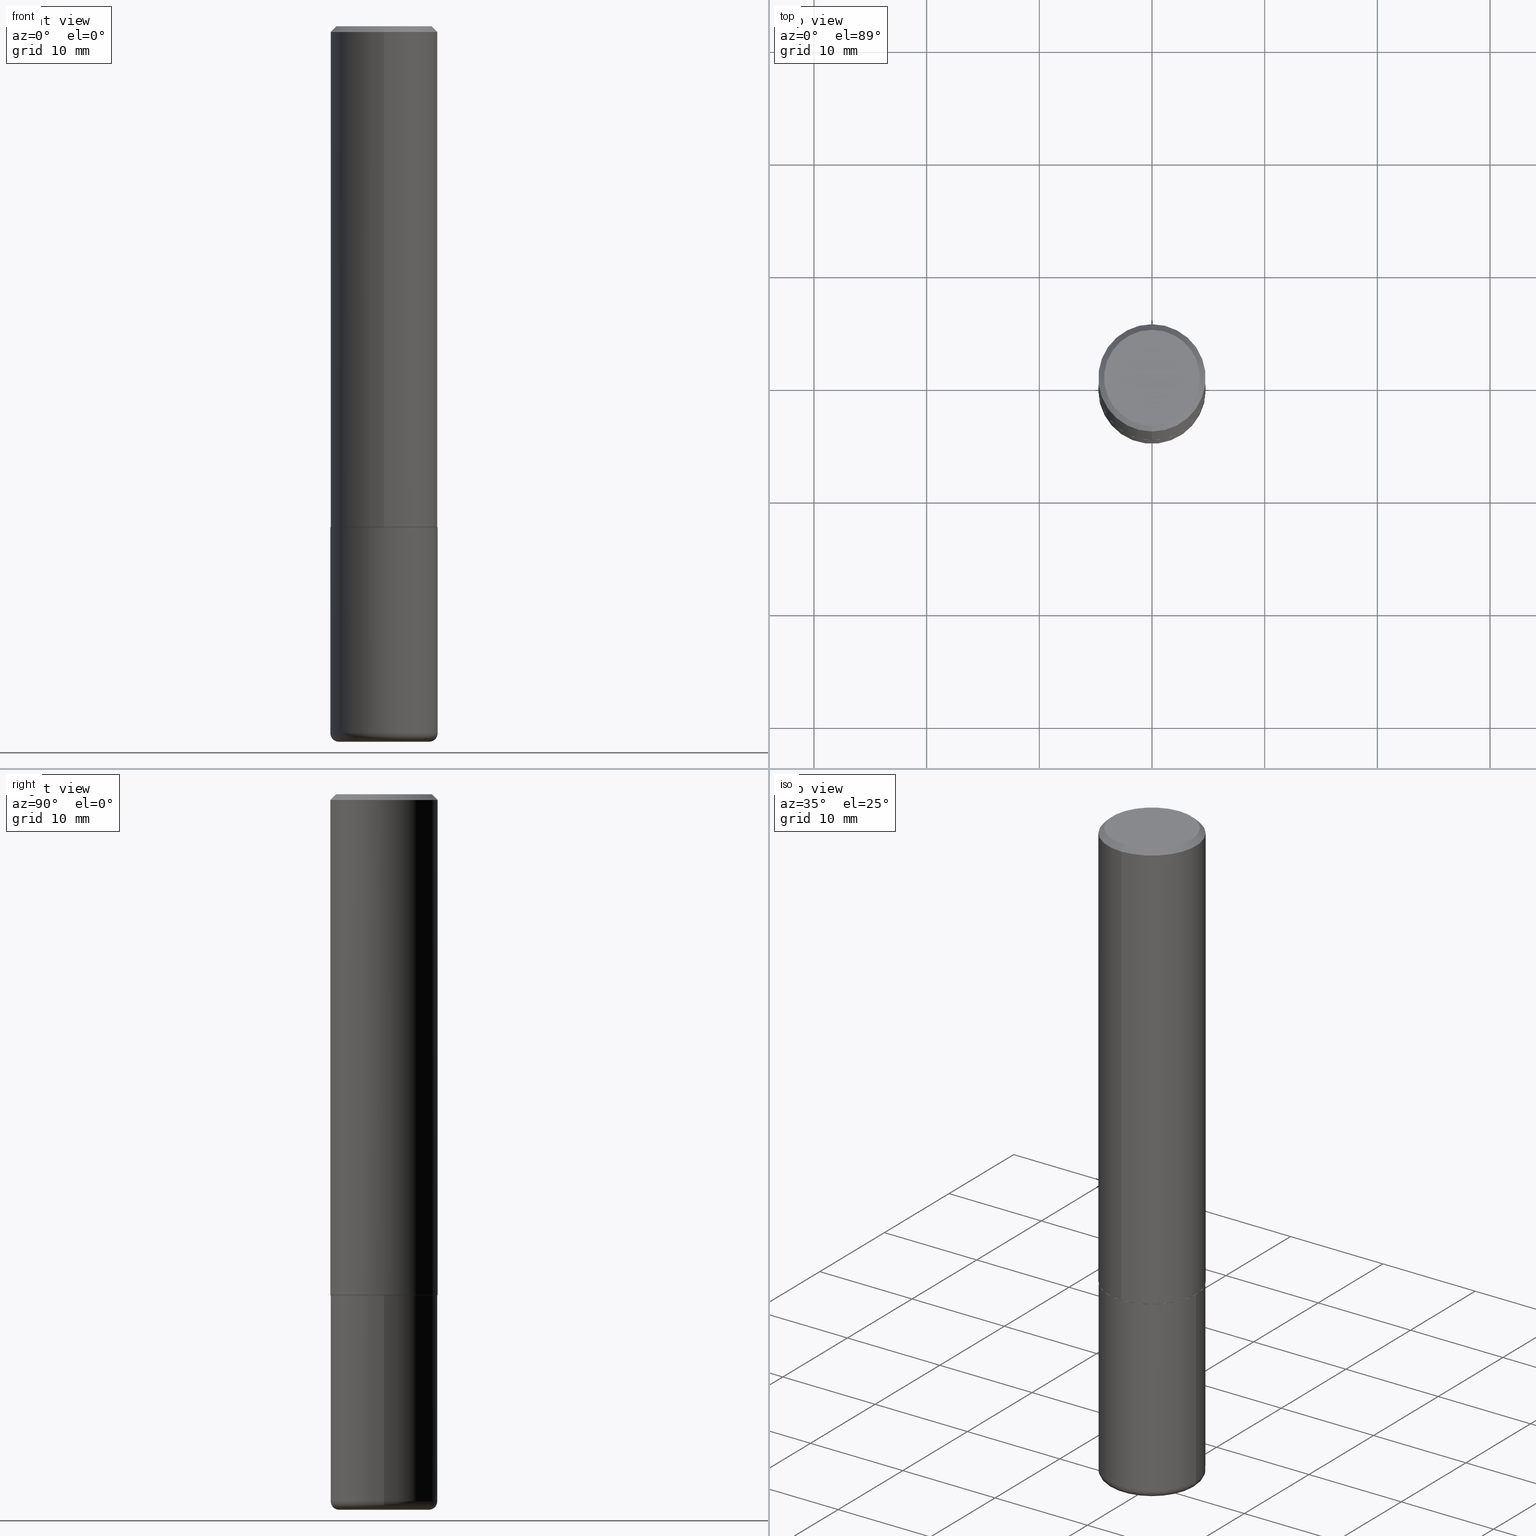
[diagram: canonical four-view strip — front | top / right | iso, engineering-drawing reading convention]
A machine part, canonical four-view strip (front | top / right | iso — engineering-drawing reading convention). The complete STEP part file that produces these views, byte-faithful:
ISO-10303-21;
HEADER;
FILE_DESCRIPTION (( 'STEP AP203' ),
    '1' );
FILE_NAME ('37174.STEP',
    '2024-03-01T21:26:41',
    ( '' ),
    ( '' ),
    'SwSTEP 2.0',
    'SolidWorks 2023',
    '' );
FILE_SCHEMA (( 'CONFIG_CONTROL_DESIGN' ));
ENDSEC;

DATA;
#1 = AXIS2_PLACEMENT_3D ( 'NONE', #156, #122, #287 ) ;
#2 = EDGE_CURVE ( 'NONE', #145, #255, #101, .T. ) ;
#3 = APPLICATION_CONTEXT ( 'configuration controlled 3d designs of mechanical parts and assemblies' ) ;
#4 = DIRECTION ( 'NONE',  ( -2.444650961945200818E-29, 3.492652538343536856E-15, 1.000000000000000000 ) ) ;
#5 = LINE ( 'NONE', #258, #79 ) ;
#6 = PERSON_AND_ORGANIZATION ( #18, #235 ) ;
#7 = ORIENTED_EDGE ( 'NONE', *, *, #300, .F. ) ;
#8 = ORIENTED_EDGE ( 'NONE', *, *, #353, .F. ) ;
#9 = DIRECTION ( 'NONE',  ( 7.105427357601001859E-15, 1.000000000000000000, -3.491481338843145583E-15 ) ) ;
#10 = AXIS2_PLACEMENT_3D ( 'NONE', #253, #283, #385 ) ;
#11 = DIRECTION ( 'NONE',  ( 6.982962677686266711E-15, 1.000000000000000000, -3.483106191921935949E-15 ) ) ;
#12 = CARTESIAN_POINT ( 'NONE',  ( -0.1875000000000000555, -7.291691277392382147E-15, -2.470000000000000195 ) ) ;
#13 = CARTESIAN_POINT ( 'NONE',  ( 1.328714915871430535E-15, 0.1864999999999938651, -1.750000000000000444 ) ) ;
#14 = CARTESIAN_POINT ( 'NONE',  ( -1.302322539388445804E-15, -0.1865000000000060776, -1.749999999999999334 ) ) ;
#15 = DIRECTION ( 'NONE',  ( -2.444650961945200818E-29, 3.492652538343536856E-15, 1.000000000000000000 ) ) ;
#16 = APPROVAL ( #125, 'UNSPECIFIED' ) ;
#17 = CARTESIAN_POINT ( 'NONE',  ( 4.889301923890413792E-31, -6.985305076687091116E-17, -0.02000000000000005246 ) ) ;
#18 = PERSON ( 'UNSPECIFIED', 'UNSPECIFIED', 'UNSPECIFIED', ('UNSPECIFIED'), ('UNSPECIFIED'), ('UNSPECIFIED') ) ;
#19 = CARTESIAN_POINT ( 'NONE',  ( 4.889301923890413792E-31, -6.985305076687091116E-17, -0.02000000000000005246 ) ) ;
#20 = CALENDAR_DATE ( 2024, 1, 3 ) ;
#21 = ORIENTED_EDGE ( 'NONE', *, *, #395, .F. ) ;
#22 = VERTEX_POINT ( 'NONE', #242 ) ;
#23 = EDGE_CURVE ( 'NONE', #321, #394, #83, .T. ) ;
#24 = PERSON_AND_ORGANIZATION ( #18, #235 ) ;
#25 = CARTESIAN_POINT ( 'NONE',  ( 1.309305502066175205E-15, 0.1874999999999999167, -0.02000000000000070471 ) ) ;
#26 = TOROIDAL_SURFACE ( 'NONE', #346, 0.1575000000000000289, 0.02999999999999998848 ) ;
#27 = CIRCLE ( 'NONE', #220, 0.1864999999999999714 ) ;
#28 = EDGE_CURVE ( 'NONE', #312, #321, #256, .T. ) ;
#29 = AXIS2_PLACEMENT_3D ( 'NONE', #314, #121, #254 ) ;
#30 = CIRCLE ( 'NONE', #168, 0.1864999999999999714 ) ;
#31 = DIRECTION ( 'NONE',  ( -6.982962677686265133E-15, -1.000000000000000000, 3.492652538343536856E-15 ) ) ;
#32 = VERTEX_POINT ( 'NONE', #307 ) ;
#33 = CONICAL_SURFACE ( 'NONE', #218, 0.1874999999999999722, 0.7853981633974469467 ) ;
#34 = DIRECTION ( 'NONE',  ( -6.982962677686266711E-15, -1.000000000000000000, 2.913971193241876428E-15 ) ) ;
#35 = DIRECTION ( 'NONE',  ( -2.444650961945200818E-29, 3.492652538343536856E-15, 1.000000000000000000 ) ) ;
#36 = ADVANCED_FACE ( 'NONE', ( #361 ), #64, .F. ) ;
#37 = DIRECTION ( 'NONE',  ( -2.444650961945200818E-29, 3.492652538343536856E-15, 1.000000000000000000 ) ) ;
#38 = ORIENTED_EDGE ( 'NONE', *, *, #176, .F. ) ;
#39 = CARTESIAN_POINT ( 'NONE',  ( -1.309305502066175797E-15, -0.1875000000000001110, 6.548723509394135303E-16 ) ) ;
#40 = EDGE_LOOP ( 'NONE', ( #166, #90, #233, #330 ) ) ;
#41 = CIRCLE ( 'NONE', #10, 0.1575000000000000289 ) ;
#42 = DIRECTION ( 'NONE',  ( -6.982962677686266711E-15, -1.000000000000000000, 3.492652538343536856E-15 ) ) ;
#43 = PERSON_AND_ORGANIZATION_ROLE ( 'creator' ) ;
#44 = EDGE_LOOP ( 'NONE', ( #415, #317 ) ) ;
#45 = APPLICATION_PROTOCOL_DEFINITION ( 'international standard', 'config_control_design', 1994, #3 ) ;
#46 = ADVANCED_FACE ( 'NONE', ( #210 ), #400, .T. ) ;
#47 = VECTOR ( 'NONE', #329, 39.37007874015748143 ) ;
#48 = DATE_AND_TIME ( #20, #281 ) ;
#49 = DIRECTION ( 'NONE',  ( 1.000000000000000000, -6.982962677686265922E-15, 4.876176775795935793E-29 ) ) ;
#50 = DIRECTION ( 'NONE',  ( 1.000000000000000000, 0.000000000000000000, 0.000000000000000000 ) ) ;
#51 = DIRECTION ( 'NONE',  ( -4.851104656540957175E-15, -0.7071067811865490160, -0.7071067811865460184 ) ) ;
#52 = FACE_OUTER_BOUND ( 'NONE', #186, .T. ) ;
#53 = ORIENTED_EDGE ( 'NONE', *, *, #315, .T. ) ;
#54 = AXIS2_PLACEMENT_3D ( 'NONE', #234, #182, #49 ) ;
#55 = ADVANCED_FACE ( 'NONE', ( #52 ), #396, .T. ) ;
#56 = CARTESIAN_POINT ( 'NONE',  ( 4.278139183404100941E-29, -6.112141942101189794E-15, -1.750000000000000000 ) ) ;
#57 = ORIENTED_EDGE ( 'NONE', *, *, #257, .F. ) ;
#58 = DIRECTION ( 'NONE',  ( -2.444650961945200818E-29, 3.492652538343536856E-15, 1.000000000000000000 ) ) ;
#59 = CARTESIAN_POINT ( 'NONE',  ( 4.278139183404100941E-29, -6.112141942101189794E-15, -1.750000000000000000 ) ) ;
#60 = CIRCLE ( 'NONE', #167, 0.02999999999999998848 ) ;
#61 = PRODUCT_RELATED_PRODUCT_CATEGORY ( 'detail', '', ( #200 ) ) ;
#62 = DIRECTION ( 'NONE',  ( 1.000000000000000000, -6.982962677686265922E-15, 0.000000000000000000 ) ) ;
#63 = ORIENTED_EDGE ( 'NONE', *, *, #114, .F. ) ;
#64 = PLANE ( 'NONE',  #190 ) ;
#65 = CARTESIAN_POINT ( 'NONE',  ( -1.309305502066134185E-15, -0.1875000000000064115, -1.748999999999999666 ) ) ;
#66 = APPROVAL_ROLE ( '' ) ;
#67 = CLOSED_SHELL ( 'NONE', ( #251, #245, #46, #73, #416, #216, #343, #327 ) ) ;
#68 = DIRECTION ( 'NONE',  ( 1.000000000000000000, -6.982962677686265922E-15, 4.876176775795935793E-29 ) ) ;
#69 = CARTESIAN_POINT ( 'NONE',  ( 4.279570410823989044E-29, -6.110092342975505460E-15, -1.750000000000000222 ) ) ;
#70 = CIRCLE ( 'NONE', #158, 0.1875000000000000555 ) ;
#71 = COORDINATED_UNIVERSAL_TIME_OFFSET ( 5, 0, .BEHIND. ) ;
#72 = CYLINDRICAL_SURFACE ( 'NONE', #284, 0.1875000000000001110 ) ;
#73 = ADVANCED_FACE ( 'NONE', ( #179 ), #33, .T. ) ;
#74 = CIRCLE ( 'NONE', #126, 0.1675000000000002320 ) ;
#75 = CARTESIAN_POINT ( 'NONE',  ( -1.302322539388445804E-15, -0.1865000000000060776, -1.749999999999999334 ) ) ;
#76 = CARTESIAN_POINT ( 'NONE',  ( 1.325162202192629242E-15, 0.1864999999999938651, -1.750000000000000444 ) ) ;
#77 = APPROVAL_DATE_TIME ( #349, #16 ) ;
#78 =( CONVERSION_BASED_UNIT ( 'INCH', #337 ) LENGTH_UNIT ( ) NAMED_UNIT ( #374 ) );
#79 = VECTOR ( 'NONE', #391, 39.37007874015748143 ) ;
#80 = DATE_AND_TIME ( #368, #123 ) ;
#81 = DIRECTION ( 'NONE',  ( 2.444650961945200818E-29, -3.492652538343536856E-15, -1.000000000000000000 ) ) ;
#82 = DATE_TIME_ROLE ( 'classification_date' ) ;
#83 = LINE ( 'NONE', #214, #334 ) ;
#84 = CARTESIAN_POINT ( 'NONE',  ( 0.000000000000000000, 0.000000000000000000, 0.000000000000000000 ) ) ;
#85 = CONICAL_SURFACE ( 'NONE', #202, 0.1864999999999999714, 0.7853981633977044075 ) ;
#86 = EDGE_CURVE ( 'NONE', #99, #255, #278, .T. ) ;
#87 = DIRECTION ( 'NONE',  ( -2.445468806185136597E-29, 3.491481338843145583E-15, 1.000000000000000000 ) ) ;
#88 = ORIENTED_EDGE ( 'NONE', *, *, #2, .F. ) ;
#89 = CARTESIAN_POINT ( 'NONE',  ( 4.278139183404100941E-29, -6.112141942101189794E-15, -1.750000000000000000 ) ) ;
#90 = ORIENTED_EDGE ( 'NONE', *, *, #188, .T. ) ;
#91 = FACE_OUTER_BOUND ( 'NONE', #324, .T. ) ;
#92 = AXIS2_PLACEMENT_3D ( 'NONE', #297, #322, #11 ) ;
#93 = ORIENTED_EDGE ( 'NONE', *, *, #353, .T. ) ;
#94 = CALENDAR_DATE ( 2024, 1, 3 ) ;
#95 = EDGE_LOOP ( 'NONE', ( #118, #116 ) ) ;
#96 = CC_DESIGN_PERSON_AND_ORGANIZATION_ASSIGNMENT ( #332, #366, ( #115 ) ) ;
#97 = DIRECTION ( 'NONE',  ( -2.444650961945200818E-29, 3.492652538343536856E-15, 1.000000000000000000 ) ) ;
#98 = VECTOR ( 'NONE', #51, 39.37007874015748143 ) ;
#99 = VERTEX_POINT ( 'NONE', #25 ) ;
#100 = EDGE_LOOP ( 'NONE', ( #285, #227, #154, #38 ) ) ;
#101 = LINE ( 'NONE', #294, #98 ) ;
#102 = DIRECTION ( 'NONE',  ( 6.982962677686265922E-15, 1.000000000000000000, -3.492652538343536856E-15 ) ) ;
#103 = CC_DESIGN_APPROVAL ( #276, ( #169 ) ) ;
#104 = EDGE_CURVE ( 'NONE', #371, #333, #372, .T. ) ;
#105 = DIRECTION ( 'NONE',  ( -4.937700262165812586E-15, -0.7071067811867262076, 0.7071067811863689379 ) ) ;
#106 = AXIS2_PLACEMENT_3D ( 'NONE', #282, #344, #31 ) ;
#107 = APPROVAL_ROLE ( '' ) ;
#108 = ORIENTED_EDGE ( 'NONE', *, *, #104, .F. ) ;
#109 = DIRECTION ( 'NONE',  ( -2.444650961945200818E-29, 3.492652538343536856E-15, 1.000000000000000000 ) ) ;
#110 = CARTESIAN_POINT ( 'NONE',  ( 4.279570410823989044E-29, -6.110092342975505460E-15, -1.750000000000000222 ) ) ;
#111 = APPLICATION_CONTEXT ( 'configuration controlled 3d designs of mechanical parts and assemblies' ) ;
#112 = ORIENTED_EDGE ( 'NONE', *, *, #319, .F. ) ;
#113 = DIRECTION ( 'NONE',  ( 1.000000000000000000, -6.982962677686266711E-15, 0.000000000000000000 ) ) ;
#114 = EDGE_CURVE ( 'NONE', #394, #22, #288, .T. ) ;
#115 = SECURITY_CLASSIFICATION ( '', '', #174 ) ;
#116 = ORIENTED_EDGE ( 'NONE', *, *, #188, .F. ) ;
#117 = CARTESIAN_POINT ( 'NONE',  ( 6.113672015462842613E-29, -8.728703347107864943E-15, -2.500000000000000000 ) ) ;
#118 = ORIENTED_EDGE ( 'NONE', *, *, #183, .F. ) ;
#119 = DIRECTION ( 'NONE',  ( -6.982962677686265922E-15, -1.000000000000000000, 2.929595703661408850E-15 ) ) ;
#120 = EDGE_CURVE ( 'NONE', #145, #142, #325, .T. ) ;
#121 = DIRECTION ( 'NONE',  ( 2.438088387897960049E-29, -3.491481338843145188E-15, -1.000000000000000000 ) ) ;
#122 = DIRECTION ( 'NONE',  ( -6.982962677686266711E-15, -1.000000000000000000, 3.491481338843145583E-15 ) ) ;
#123 = LOCAL_TIME ( 16, 26, 41.00000000000000000, #71 ) ;
#124 = ORIENTED_EDGE ( 'NONE', *, *, #331, .F. ) ;
#125 = APPROVAL_STATUS ( 'not_yet_approved' ) ;
#126 = AXIS2_PLACEMENT_3D ( 'NONE', #127, #37, #226 ) ;
#127 = CARTESIAN_POINT ( 'NONE',  ( 5.943167387624159977E-45, -8.490953917474353626E-31, -2.431090360194079171E-16 ) ) ;
#128 = FACE_OUTER_BOUND ( 'NONE', #364, .T. ) ;
#129 = EDGE_LOOP ( 'NONE', ( #88, #21, #244, #261 ) ) ;
#130 = ORIENTED_EDGE ( 'NONE', *, *, #147, .T. ) ;
#131 = DIRECTION ( 'NONE',  ( -1.000000000000000000, 7.105427357600993970E-15, 0.000000000000000000 ) ) ;
#132 = LINE ( 'NONE', #76, #47 ) ;
#133 = EDGE_CURVE ( 'NONE', #312, #22, #148, .T. ) ;
#134 = ORIENTED_EDGE ( 'NONE', *, *, #133, .T. ) ;
#135 = DIRECTION ( 'NONE',  ( -2.444650961945200818E-29, 3.492652538343536856E-15, 1.000000000000000000 ) ) ;
#136 = DIRECTION ( 'NONE',  ( -6.982962677686265922E-15, -1.000000000000000000, 3.492652538343536856E-15 ) ) ;
#137 = CC_DESIGN_APPROVAL ( #139, ( #115 ) ) ;
#138 = PERSON_AND_ORGANIZATION_ROLE ( 'design_supplier' ) ;
#139 = APPROVAL ( #178, 'UNSPECIFIED' ) ;
#140 = CARTESIAN_POINT ( 'NONE',  ( 4.278139183404100941E-29, -6.112141942101189794E-15, -1.750000000000000000 ) ) ;
#141 =( NAMED_UNIT ( * ) SI_UNIT ( $, .STERADIAN. ) SOLID_ANGLE_UNIT ( ) );
#142 = VERTEX_POINT ( 'NONE', #410 ) ;
#143 = DIRECTION ( 'NONE',  ( -6.982962677686266711E-15, -1.000000000000000000, 3.483106191921935949E-15 ) ) ;
#144 = DIRECTION ( 'NONE',  ( 2.438088387897960049E-29, -3.491481338843145188E-15, -1.000000000000000000 ) ) ;
#145 = VERTEX_POINT ( 'NONE', #247 ) ;
#146 = CARTESIAN_POINT ( 'NONE',  ( 4.275694532442156646E-29, -6.108649289562846914E-15, -1.749000000000000110 ) ) ;
#147 = EDGE_CURVE ( 'NONE', #22, #394, #238, .T. ) ;
#148 = LINE ( 'NONE', #311, #272 ) ;
#149 = ORIENTED_EDGE ( 'NONE', *, *, #28, .T. ) ;
#150 = AXIS2_PLACEMENT_3D ( 'NONE', #340, #181, #62 ) ;
#151 = MANIFOLD_SOLID_BREP ( 'Body-Move/Copy2[2]', #67 ) ;
#152 = TOROIDAL_SURFACE ( 'NONE', #170, 0.1575000000000000289, 0.02999999999999998848 ) ;
#153 = ORIENTED_EDGE ( 'NONE', *, *, #23, .F. ) ;
#154 = ORIENTED_EDGE ( 'NONE', *, *, #331, .T. ) ;
#155 = ORIENTED_EDGE ( 'NONE', *, *, #114, .T. ) ;
#156 = CARTESIAN_POINT ( 'NONE',  ( 0.1575000000000000289, -9.723775528678158264E-15, -2.470000000000000195 ) ) ;
#157 = CALENDAR_DATE ( 2024, 1, 3 ) ;
#158 = AXIS2_PLACEMENT_3D ( 'NONE', #379, #265, #225 ) ;
#159 = DIRECTION ( 'NONE',  ( -2.444650961945200818E-29, 3.492652538343536856E-15, 1.000000000000000000 ) ) ;
#160 = DIRECTION ( 'NONE',  ( -6.982962677686265922E-15, -1.000000000000000000, 2.929595703661408850E-15 ) ) ;
#161 = CC_DESIGN_DATE_AND_TIME_ASSIGNMENT ( #267, #326, ( #169 ) ) ;
#162 = ORIENTED_EDGE ( 'NONE', *, *, #306, .F. ) ;
#163 = CARTESIAN_POINT ( 'NONE',  ( 4.275694532442156646E-29, -6.108649289562846914E-15, -1.749000000000000110 ) ) ;
#164 = FACE_OUTER_BOUND ( 'NONE', #230, .T. ) ;
#165 = ORIENTED_EDGE ( 'NONE', *, *, #257, .T. ) ;
#166 = ORIENTED_EDGE ( 'NONE', *, *, #310, .F. ) ;
#167 = AXIS2_PLACEMENT_3D ( 'NONE', #295, #9, #131 ) ;
#168 = AXIS2_PLACEMENT_3D ( 'NONE', #140, #402, #239 ) ;
#169 = PRODUCT_DEFINITION ( 'UNKNOWN', '', #350, #197 ) ;
#170 = AXIS2_PLACEMENT_3D ( 'NONE', #389, #356, #386 ) ;
#171 = DIRECTION ( 'NONE',  ( -6.982962677686265922E-15, -1.000000000000000000, 2.929595703661408850E-15 ) ) ;
#172 = CARTESIAN_POINT ( 'NONE',  ( 4.278139183404102062E-29, -6.112141942101190583E-15, -1.750000000000000222 ) ) ;
#173 = ORIENTED_EDGE ( 'NONE', *, *, #260, .T. ) ;
#174 = SECURITY_CLASSIFICATION_LEVEL ( 'unclassified' ) ;
#175 = LOCAL_TIME ( 16, 26, 41.00000000000000000, #298 ) ;
#176 = EDGE_CURVE ( 'NONE', #142, #99, #418, .T. ) ;
#177 = AXIS2_PLACEMENT_3D ( 'NONE', #198, #221, #217 ) ;
#178 = APPROVAL_STATUS ( 'not_yet_approved' ) ;
#179 = FACE_OUTER_BOUND ( 'NONE', #129, .T. ) ;
#180 = COORDINATED_UNIVERSAL_TIME_OFFSET ( 5, 0, .BEHIND. ) ;
#181 = DIRECTION ( 'NONE',  ( -2.445468806185136597E-29, 3.491481338843145583E-15, 1.000000000000000000 ) ) ;
#182 = DIRECTION ( 'NONE',  ( -2.445468806185136597E-29, 3.491481338843145583E-15, 1.000000000000000000 ) ) ;
#183 = EDGE_CURVE ( 'NONE', #32, #338, #243, .T. ) ;
#184 = CONICAL_SURFACE ( 'NONE', #414, 0.1864999999999999714, 0.7853981633977044075 ) ;
#185 = EDGE_LOOP ( 'NONE', ( #275, #149, #286, #232 ) ) ;
#186 = EDGE_LOOP ( 'NONE', ( #165, #134, #63, #153 ) ) ;
#187 =( GEOMETRIC_REPRESENTATION_CONTEXT ( 3 ) GLOBAL_UNCERTAINTY_ASSIGNED_CONTEXT ( ( #384 ) ) GLOBAL_UNIT_ASSIGNED_CONTEXT ( ( #78, #207, #141 ) ) REPRESENTATION_CONTEXT ( 'NONE', 'WORKASPACE' ) );
#188 = EDGE_CURVE ( 'NONE', #338, #32, #41, .T. ) ;
#189 = DIRECTION ( 'NONE',  ( -2.444650961945200818E-29, 3.492652538343536856E-15, 1.000000000000000000 ) ) ;
#190 = AXIS2_PLACEMENT_3D ( 'NONE', #69, #144, #268 ) ;
#191 = PLANE ( 'NONE',  #29 ) ;
#192 = ORIENTED_EDGE ( 'NONE', *, *, #183, .T. ) ;
#193 = ADVANCED_FACE ( 'NONE', ( #345 ), #191, .T. ) ;
#194 = CIRCLE ( 'NONE', #252, 0.1875000000000002776 ) ;
#195 = ORIENTED_EDGE ( 'NONE', *, *, #401, .F. ) ;
#196 = CARTESIAN_POINT ( 'NONE',  ( 0.000000000000000000, 0.000000000000000000, 0.000000000000000000 ) ) ;
#197 = DESIGN_CONTEXT ( 'detailed design', #111, 'design' ) ;
#198 = CARTESIAN_POINT ( 'NONE',  ( 4.279570410823989044E-29, -6.110092342975505460E-15, -1.750000000000000222 ) ) ;
#199 = DIRECTION ( 'NONE',  ( -2.445468806185136597E-29, 3.491481338843145583E-15, 1.000000000000000000 ) ) ;
#200 = PRODUCT ( '37174', '37174', '', ( #369 ) ) ;
#201 = PERSON_AND_ORGANIZATION ( #18, #235 ) ;
#202 = AXIS2_PLACEMENT_3D ( 'NONE', #56, #35, #160 ) ;
#203 = CALENDAR_DATE ( 2024, 1, 3 ) ;
#204 = CARTESIAN_POINT ( 'NONE',  ( 1.332267629550210528E-15, 0.1874999999999941713, -1.749000000000000554 ) ) ;
#205 = ORIENTED_EDGE ( 'NONE', *, *, #401, .T. ) ;
#206 = SHAPE_DEFINITION_REPRESENTATION ( #259, #293 ) ;
#207 =( NAMED_UNIT ( * ) PLANE_ANGLE_UNIT ( ) SI_UNIT ( $, .RADIAN. ) );
#208 = CARTESIAN_POINT ( 'NONE',  ( -0.1575000000000000289, -7.450644907839044743E-15, -2.500000000000000000 ) ) ;
#209 = PERSON_AND_ORGANIZATION ( #18, #235 ) ;
#210 = FACE_OUTER_BOUND ( 'NONE', #100, .T. ) ;
#211 = AXIS2_PLACEMENT_3D ( 'NONE', #110, #376, #113 ) ;
#212 = CARTESIAN_POINT ( 'NONE',  ( 0.1875000000000000555, -9.933264409008746581E-15, -2.470000000000000195 ) ) ;
#213 = AXIS2_PLACEMENT_3D ( 'NONE', #172, #299, #136 ) ;
#214 = CARTESIAN_POINT ( 'NONE',  ( 0.1875000000000000555, -1.309305502066175205E-15, 9.142831454617382414E-30 ) ) ;
#215 =( LENGTH_UNIT ( ) NAMED_UNIT ( * ) SI_UNIT ( $, .METRE. ) );
#216 = ADVANCED_FACE ( 'NONE', ( #91 ), #85, .T. ) ;
#217 = DIRECTION ( 'NONE',  ( 1.000000000000000000, -6.982962677686266711E-15, 0.000000000000000000 ) ) ;
#218 = AXIS2_PLACEMENT_3D ( 'NONE', #407, #81, #304 ) ;
#219 = DIRECTION ( 'NONE',  ( 1.000000000000000000, -6.982962677686267499E-15, 0.000000000000000000 ) ) ;
#220 = AXIS2_PLACEMENT_3D ( 'NONE', #59, #135, #171 ) ;
#221 = DIRECTION ( 'NONE',  ( -2.445468806185136597E-29, 3.491481338843145583E-15, 1.000000000000000000 ) ) ;
#222 = ORIENTED_EDGE ( 'NONE', *, *, #104, .T. ) ;
#223 = AXIS2_PLACEMENT_3D ( 'NONE', #273, #398, #102 ) ;
#224 = EDGE_CURVE ( 'NONE', #371, #99, #5, .T. ) ;
#225 = DIRECTION ( 'NONE',  ( 1.000000000000000000, -6.982962677686265922E-15, 0.000000000000000000 ) ) ;
#226 = DIRECTION ( 'NONE',  ( -6.982962677686265133E-15, -1.000000000000000000, 3.492652538343536856E-15 ) ) ;
#227 = ORIENTED_EDGE ( 'NONE', *, *, #2, .T. ) ;
#228 = CYLINDRICAL_SURFACE ( 'NONE', #365, 0.1875000000000001110 ) ;
#229 = CIRCLE ( 'NONE', #1, 0.02999999999999998848 ) ;
#230 = EDGE_LOOP ( 'NONE', ( #378, #406, #124, #404 ) ) ;
#231 = LINE ( 'NONE', #39, #318 ) ;
#232 = ORIENTED_EDGE ( 'NONE', *, *, #147, .F. ) ;
#233 = ORIENTED_EDGE ( 'NONE', *, *, #300, .T. ) ;
#234 = CARTESIAN_POINT ( 'NONE',  ( 0.000000000000000000, 0.000000000000000000, 0.000000000000000000 ) ) ;
#235 = ORGANIZATION ( 'UNSPECIFIED', 'UNSPECIFIED', '' ) ;
#236 = FACE_OUTER_BOUND ( 'NONE', #413, .T. ) ;
#237 = CARTESIAN_POINT ( 'NONE',  ( 0.000000000000000000, 0.000000000000000000, 0.000000000000000000 ) ) ;
#238 = CIRCLE ( 'NONE', #211, 0.1875000000000000278 ) ;
#239 = DIRECTION ( 'NONE',  ( -6.982962677686265922E-15, -1.000000000000000000, 2.929595703661408850E-15 ) ) ;
#240 = CC_DESIGN_PERSON_AND_ORGANIZATION_ASSIGNMENT ( #6, #43, ( #169 ) ) ;
#241 = LINE ( 'NONE', #75, #408 ) ;
#242 = CARTESIAN_POINT ( 'NONE',  ( -0.1875000000000000278, -6.034757995408849879E-15, -1.750000000000000222 ) ) ;
#243 = CIRCLE ( 'NONE', #341, 0.1575000000000000289 ) ;
#244 = ORIENTED_EDGE ( 'NONE', *, *, #176, .T. ) ;
#245 = ADVANCED_FACE ( 'NONE', ( #164 ), #228, .T. ) ;
#246 = PERSON_AND_ORGANIZATION ( #18, #235 ) ;
#247 = CARTESIAN_POINT ( 'NONE',  ( -1.217738394604447231E-15, -0.1675000000000002320, 3.419102641531351581E-16 ) ) ;
#248 = APPROVAL_ROLE ( '' ) ;
#249 = APPROVAL_PERSON_ORGANIZATION ( #201, #16, #66 ) ;
#250 = AXIS2_PLACEMENT_3D ( 'NONE', #84, #302, #50 ) ;
#251 = ADVANCED_FACE ( 'NONE', ( #339 ), #184, .T. ) ;
#252 = AXIS2_PLACEMENT_3D ( 'NONE', #163, #4, #34 ) ;
#253 = CARTESIAN_POINT ( 'NONE',  ( 6.113672015462842613E-29, -8.728703347107864943E-15, -2.500000000000000000 ) ) ;
#254 = DIRECTION ( 'NONE',  ( -1.000000000000000000, 6.982962677686265922E-15, -4.876176775795935793E-29 ) ) ;
#255 = VERTEX_POINT ( 'NONE', #412 ) ;
#256 = CIRCLE ( 'NONE', #150, 0.1875000000000000555 ) ;
#257 = EDGE_CURVE ( 'NONE', #321, #312, #70, .T. ) ;
#258 = CARTESIAN_POINT ( 'NONE',  ( 1.332267629550188440E-15, 0.1875000000000001110, -6.548723509394135303E-16 ) ) ;
#259 = PRODUCT_DEFINITION_SHAPE ( 'NONE', 'NONE',  #169 ) ;
#260 = EDGE_CURVE ( 'NONE', #333, #255, #231, .T. ) ;
#261 = ORIENTED_EDGE ( 'NONE', *, *, #86, .T. ) ;
#262 = COORDINATED_UNIVERSAL_TIME_OFFSET ( 5, 0, .BEHIND. ) ;
#263 = CARTESIAN_POINT ( 'NONE',  ( 0.000000000000000000, 0.000000000000000000, 0.000000000000000000 ) ) ;
#264 = DIRECTION ( 'NONE',  ( -2.445468806185136877E-29, 3.491481338843145188E-15, 1.000000000000000000 ) ) ;
#265 = DIRECTION ( 'NONE',  ( -2.445468806185136597E-29, 3.491481338843145583E-15, 1.000000000000000000 ) ) ;
#266 = EDGE_LOOP ( 'NONE', ( #155, #130 ) ) ;
#267 = DATE_AND_TIME ( #157, #399 ) ;
#268 = DIRECTION ( 'NONE',  ( -1.000000000000000000, 6.982962677686265922E-15, -4.876176775795935793E-29 ) ) ;
#269 = FACE_OUTER_BOUND ( 'NONE', #44, .T. ) ;
#270 = PERSON_AND_ORGANIZATION_ROLE ( 'creator' ) ;
#271 = ADVANCED_FACE ( 'NONE', ( #316 ), #26, .T. ) ;
#272 = VECTOR ( 'NONE', #387, 39.37007874015748143 ) ;
#273 = CARTESIAN_POINT ( 'NONE',  ( 1.169646248512450976E-15, 0.1675000000000002320, -7.065738181822472063E-16 ) ) ;
#274 = APPLICATION_PROTOCOL_DEFINITION ( 'international standard', 'config_control_design', 1994, #111 ) ;
#275 = ORIENTED_EDGE ( 'NONE', *, *, #133, .F. ) ;
#276 = APPROVAL ( #375, 'UNSPECIFIED' ) ;
#277 = EDGE_LOOP ( 'NONE', ( #205, #347, #162, #397 ) ) ;
#278 = CIRCLE ( 'NONE', #382, 0.1874999999999999722 ) ;
#279 = CC_DESIGN_PERSON_AND_ORGANIZATION_ASSIGNMENT ( #24, #138, ( #350 ) ) ;
#280 = CIRCLE ( 'NONE', #392, 0.1874999999999999722 ) ;
#281 = LOCAL_TIME ( 16, 26, 41.00000000000000000, #180 ) ;
#282 = CARTESIAN_POINT ( 'NONE',  ( 5.943167387624159977E-45, -8.490953917474353626E-31, -2.431090360194079171E-16 ) ) ;
#283 = DIRECTION ( 'NONE',  ( -2.445468806185136597E-29, 3.491481338843145583E-15, 1.000000000000000000 ) ) ;
#284 = AXIS2_PLACEMENT_3D ( 'NONE', #263, #159, #290 ) ;
#285 = ORIENTED_EDGE ( 'NONE', *, *, #120, .F. ) ;
#286 = ORIENTED_EDGE ( 'NONE', *, *, #23, .T. ) ;
#287 = DIRECTION ( 'NONE',  ( 1.000000000000000000, -6.982962677686270655E-15, 0.000000000000000000 ) ) ;
#288 = CIRCLE ( 'NONE', #177, 0.1875000000000000278 ) ;
#289 = CC_DESIGN_APPROVAL ( #16, ( #350 ) ) ;
#290 = DIRECTION ( 'NONE',  ( -6.982962677686266711E-15, -1.000000000000000000, 3.492652538343536856E-15 ) ) ;
#291 = CC_DESIGN_DATE_AND_TIME_ASSIGNMENT ( #48, #82, ( #115 ) ) ;
#292 = FACE_OUTER_BOUND ( 'NONE', #185, .T. ) ;
#293 = ADVANCED_BREP_SHAPE_REPRESENTATION ( '37174', ( #296, #151, #250 ), #187 ) ;
#294 = CARTESIAN_POINT ( 'NONE',  ( -1.286343374582161379E-15, -0.1875000000000000555, -0.01999999999999939673 ) ) ;
#295 = CARTESIAN_POINT ( 'NONE',  ( -0.1575000000000000289, -7.504854098120412392E-15, -2.470000000000000195 ) ) ;
#296 = MANIFOLD_SOLID_BREP ( 'Body-Move/Copy2[1]', #313 ) ;
#297 = CARTESIAN_POINT ( 'NONE',  ( 4.889301923890413792E-31, -6.985305076687091116E-17, -0.02000000000000005246 ) ) ;
#298 = COORDINATED_UNIVERSAL_TIME_OFFSET ( 5, 0, .BEHIND. ) ;
#299 = DIRECTION ( 'NONE',  ( -2.444650961945200538E-29, 3.492652538343536856E-15, 1.000000000000000000 ) ) ;
#300 = EDGE_CURVE ( 'NONE', #32, #321, #229, .T. ) ;
#301 = PLANE ( 'NONE',  #223 ) ;
#302 = DIRECTION ( 'NONE',  ( 0.000000000000000000, 0.000000000000000000, 1.000000000000000000 ) ) ;
#303 = PLANE ( 'NONE',  #213 ) ;
#304 = DIRECTION ( 'NONE',  ( 6.982962677686266711E-15, 1.000000000000000000, -3.483106191921935949E-15 ) ) ;
#305 = PERSON_AND_ORGANIZATION_ROLE ( 'design_owner' ) ;
#306 = EDGE_CURVE ( 'NONE', #333, #371, #194, .T. ) ;
#307 = CARTESIAN_POINT ( 'NONE',  ( 0.1575000000000000289, -9.828519968843451634E-15, -2.500000000000000000 ) ) ;
#308 = DIRECTION ( 'NONE',  ( -6.982962677686266711E-15, -1.000000000000000000, 3.483106191921935949E-15 ) ) ;
#309 = VECTOR ( 'NONE', #383, 39.37007874015748143 ) ;
#310 = EDGE_CURVE ( 'NONE', #338, #312, #60, .T. ) ;
#311 = CARTESIAN_POINT ( 'NONE',  ( -0.1875000000000000555, 1.332267629550188243E-15, -9.223003294227950793E-30 ) ) ;
#312 = VERTEX_POINT ( 'NONE', #12 ) ;
#313 = CLOSED_SHELL ( 'NONE', ( #55, #271, #36, #409, #370, #193 ) ) ;
#314 = CARTESIAN_POINT ( 'NONE',  ( 6.113672015462842613E-29, -8.728703347107864943E-15, -2.500000000000000000 ) ) ;
#315 = EDGE_CURVE ( 'NONE', #373, #333, #241, .T. ) ;
#316 = FACE_OUTER_BOUND ( 'NONE', #352, .T. ) ;
#317 = ORIENTED_EDGE ( 'NONE', *, *, #120, .T. ) ;
#318 = VECTOR ( 'NONE', #58, 39.37007874015748143 ) ;
#319 = EDGE_CURVE ( 'NONE', #351, #371, #132, .T. ) ;
#320 = DIRECTION ( 'NONE',  ( -2.445468806185136597E-29, 3.491481338843145583E-15, 1.000000000000000000 ) ) ;
#321 = VERTEX_POINT ( 'NONE', #212 ) ;
#322 = DIRECTION ( 'NONE',  ( 2.444650961945200818E-29, -3.492652538343536856E-15, -1.000000000000000000 ) ) ;
#323 = DIRECTION ( 'NONE',  ( 1.000000000000000000, -6.982962677686267499E-15, 4.883557194083113462E-29 ) ) ;
#324 = EDGE_LOOP ( 'NONE', ( #112, #93, #53, #108 ) ) ;
#325 = CIRCLE ( 'NONE', #106, 0.1675000000000002320 ) ;
#326 = DATE_TIME_ROLE ( 'creation_date' ) ;
#327 = ADVANCED_FACE ( 'NONE', ( #269 ), #301, .F. ) ;
#328 = DATE_AND_TIME ( #203, #380 ) ;
#329 = DIRECTION ( 'NONE',  ( 5.024295867789349022E-15, 0.7071067811867310926, 0.7071067811863640529 ) ) ;
#330 = ORIENTED_EDGE ( 'NONE', *, *, #28, .F. ) ;
#331 = EDGE_CURVE ( 'NONE', #255, #99, #280, .T. ) ;
#332 = PERSON_AND_ORGANIZATION ( #18, #235 ) ;
#333 = VERTEX_POINT ( 'NONE', #65 ) ;
#334 = VECTOR ( 'NONE', #264, 39.37007874015748143 ) ;
#335 = APPROVAL_DATE_TIME ( #80, #139 ) ;
#336 = ORIENTED_EDGE ( 'NONE', *, *, #86, .F. ) ;
#337 = LENGTH_MEASURE_WITH_UNIT ( LENGTH_MEASURE( 0.02539999999999999897 ), #215 );
#338 = VERTEX_POINT ( 'NONE', #208 ) ;
#339 = FACE_OUTER_BOUND ( 'NONE', #277, .T. ) ;
#340 = CARTESIAN_POINT ( 'NONE',  ( 6.040307951277287977E-29, -8.623958906942569995E-15, -2.470000000000000195 ) ) ;
#341 = AXIS2_PLACEMENT_3D ( 'NONE', #117, #87, #219 ) ;
#342 = ORIENTED_EDGE ( 'NONE', *, *, #224, .F. ) ;
#343 = ADVANCED_FACE ( 'NONE', ( #236 ), #303, .F. ) ;
#344 = DIRECTION ( 'NONE',  ( -2.444650961945200818E-29, 3.492652538343536856E-15, 1.000000000000000000 ) ) ;
#345 = FACE_OUTER_BOUND ( 'NONE', #95, .T. ) ;
#346 = AXIS2_PLACEMENT_3D ( 'NONE', #358, #199, #323 ) ;
#347 = ORIENTED_EDGE ( 'NONE', *, *, #319, .T. ) ;
#348 = APPROVAL_PERSON_ORGANIZATION ( #403, #139, #107 ) ;
#349 = DATE_AND_TIME ( #94, #175 ) ;
#350 = PRODUCT_DEFINITION_FORMATION_WITH_SPECIFIED_SOURCE ( 'ANY', '', #200, .NOT_KNOWN. ) ;
#351 = VERTEX_POINT ( 'NONE', #13 ) ;
#352 = EDGE_LOOP ( 'NONE', ( #192, #393, #57, #7 ) ) ;
#353 = EDGE_CURVE ( 'NONE', #351, #373, #30, .T. ) ;
#354 = AXIS2_PLACEMENT_3D ( 'NONE', #146, #97, #357 ) ;
#355 = CC_DESIGN_SECURITY_CLASSIFICATION ( #115, ( #350 ) ) ;
#356 = DIRECTION ( 'NONE',  ( -2.445468806185136597E-29, 3.491481338843145583E-15, 1.000000000000000000 ) ) ;
#357 = DIRECTION ( 'NONE',  ( -6.982962677686266711E-15, -1.000000000000000000, 2.913971193241876428E-15 ) ) ;
#358 = CARTESIAN_POINT ( 'NONE',  ( 6.040307951277287977E-29, -8.623958906942569995E-15, -2.470000000000000195 ) ) ;
#359 = DIRECTION ( 'NONE',  ( -2.444650961945200818E-29, 3.492652538343536856E-15, 1.000000000000000000 ) ) ;
#360 = CARTESIAN_POINT ( 'NONE',  ( 0.1875000000000000278, -7.419397845041680468E-15, -1.750000000000000222 ) ) ;
#361 = FACE_OUTER_BOUND ( 'NONE', #266, .T. ) ;
#362 = CC_DESIGN_PERSON_AND_ORGANIZATION_ASSIGNMENT ( #209, #270, ( #350 ) ) ;
#363 = CYLINDRICAL_SURFACE ( 'NONE', #417, 0.1875000000000000555 ) ;
#364 = EDGE_LOOP ( 'NONE', ( #342, #222, #173, #336 ) ) ;
#365 = AXIS2_PLACEMENT_3D ( 'NONE', #196, #359, #42 ) ;
#366 = PERSON_AND_ORGANIZATION_ROLE ( 'classification_officer' ) ;
#367 = FACE_OUTER_BOUND ( 'NONE', #40, .T. ) ;
#368 = CALENDAR_DATE ( 2024, 1, 3 ) ;
#369 = MECHANICAL_CONTEXT ( 'NONE', #3, 'mechanical' ) ;
#370 = ADVANCED_FACE ( 'NONE', ( #367 ), #152, .T. ) ;
#371 = VERTEX_POINT ( 'NONE', #204 ) ;
#372 = CIRCLE ( 'NONE', #354, 0.1875000000000002776 ) ;
#373 = VERTEX_POINT ( 'NONE', #14 ) ;
#374 = DIMENSIONAL_EXPONENTS ( 1.000000000000000000, 0.000000000000000000, 0.000000000000000000, 0.000000000000000000, 0.000000000000000000, 0.000000000000000000, 0.000000000000000000 ) ;
#375 = APPROVAL_STATUS ( 'not_yet_approved' ) ;
#376 = DIRECTION ( 'NONE',  ( -2.445468806185136597E-29, 3.491481338843145583E-15, 1.000000000000000000 ) ) ;
#377 = COORDINATED_UNIVERSAL_TIME_OFFSET ( 5, 0, .BEHIND. ) ;
#378 = ORIENTED_EDGE ( 'NONE', *, *, #306, .T. ) ;
#379 = CARTESIAN_POINT ( 'NONE',  ( 6.040307951277287977E-29, -8.623958906942569995E-15, -2.470000000000000195 ) ) ;
#380 = LOCAL_TIME ( 16, 26, 41.00000000000000000, #377 ) ;
#381 = CARTESIAN_POINT ( 'NONE',  ( 1.309305502066175205E-15, 0.1874999999999999167, -0.02000000000000070471 ) ) ;
#382 = AXIS2_PLACEMENT_3D ( 'NONE', #17, #109, #308 ) ;
#383 = DIRECTION ( 'NONE',  ( 4.937700262164540942E-15, 0.7071067811865441310, -0.7071067811865509034 ) ) ;
#384 = UNCERTAINTY_MEASURE_WITH_UNIT (LENGTH_MEASURE( 1.000000000000000082E-05 ), #78, 'distance_accuracy_value', 'NONE');
#385 = DIRECTION ( 'NONE',  ( 1.000000000000000000, -6.982962677686267499E-15, 0.000000000000000000 ) ) ;
#386 = DIRECTION ( 'NONE',  ( 1.000000000000000000, -6.982962677686267499E-15, 4.883557194083113462E-29 ) ) ;
#387 = DIRECTION ( 'NONE',  ( -2.445468806185136877E-29, 3.491481338843145188E-15, 1.000000000000000000 ) ) ;
#388 = APPROVAL_DATE_TIME ( #328, #276 ) ;
#389 = CARTESIAN_POINT ( 'NONE',  ( 6.040307951277287977E-29, -8.623958906942569995E-15, -2.470000000000000195 ) ) ;
#390 = CC_DESIGN_PERSON_AND_ORGANIZATION_ASSIGNMENT ( #246, #305, ( #200 ) ) ;
#391 = DIRECTION ( 'NONE',  ( -2.444650961945200818E-29, 3.492652538343536856E-15, 1.000000000000000000 ) ) ;
#392 = AXIS2_PLACEMENT_3D ( 'NONE', #19, #15, #143 ) ;
#393 = ORIENTED_EDGE ( 'NONE', *, *, #310, .T. ) ;
#394 = VERTEX_POINT ( 'NONE', #360 ) ;
#395 = EDGE_CURVE ( 'NONE', #142, #145, #74, .T. ) ;
#396 = CYLINDRICAL_SURFACE ( 'NONE', #54, 0.1875000000000000555 ) ;
#397 = ORIENTED_EDGE ( 'NONE', *, *, #315, .F. ) ;
#398 = DIRECTION ( 'NONE',  ( 2.444650961945200538E-29, -3.492652538343536856E-15, -1.000000000000000000 ) ) ;
#399 = LOCAL_TIME ( 16, 26, 41.00000000000000000, #262 ) ;
#400 = CONICAL_SURFACE ( 'NONE', #92, 0.1874999999999999722, 0.7853981633974469467 ) ;
#401 = EDGE_CURVE ( 'NONE', #373, #351, #27, .T. ) ;
#402 = DIRECTION ( 'NONE',  ( -2.444650961945200818E-29, 3.492652538343536856E-15, 1.000000000000000000 ) ) ;
#403 = PERSON_AND_ORGANIZATION ( #18, #235 ) ;
#404 = ORIENTED_EDGE ( 'NONE', *, *, #260, .F. ) ;
#405 = APPROVAL_PERSON_ORGANIZATION ( #411, #276, #248 ) ;
#406 = ORIENTED_EDGE ( 'NONE', *, *, #224, .T. ) ;
#407 = CARTESIAN_POINT ( 'NONE',  ( 4.889301923890413792E-31, -6.985305076687091116E-17, -0.02000000000000005246 ) ) ;
#408 = VECTOR ( 'NONE', #105, 39.37007874015748143 ) ;
#409 = ADVANCED_FACE ( 'NONE', ( #292 ), #363, .T. ) ;
#410 = CARTESIAN_POINT ( 'NONE',  ( 1.239475875289313091E-15, 0.1675000000000002320, -8.281283361919508936E-16 ) ) ;
#411 = PERSON_AND_ORGANIZATION ( #18, #235 ) ;
#412 = CARTESIAN_POINT ( 'NONE',  ( -1.286343374582161379E-15, -0.1875000000000000555, -0.01999999999999939673 ) ) ;
#413 = EDGE_LOOP ( 'NONE', ( #195, #8 ) ) ;
#414 = AXIS2_PLACEMENT_3D ( 'NONE', #89, #189, #119 ) ;
#415 = ORIENTED_EDGE ( 'NONE', *, *, #395, .T. ) ;
#416 = ADVANCED_FACE ( 'NONE', ( #128 ), #72, .T. ) ;
#417 = AXIS2_PLACEMENT_3D ( 'NONE', #237, #320, #68 ) ;
#418 = LINE ( 'NONE', #381, #309 ) ;
ENDSEC;
END-ISO-10303-21;
